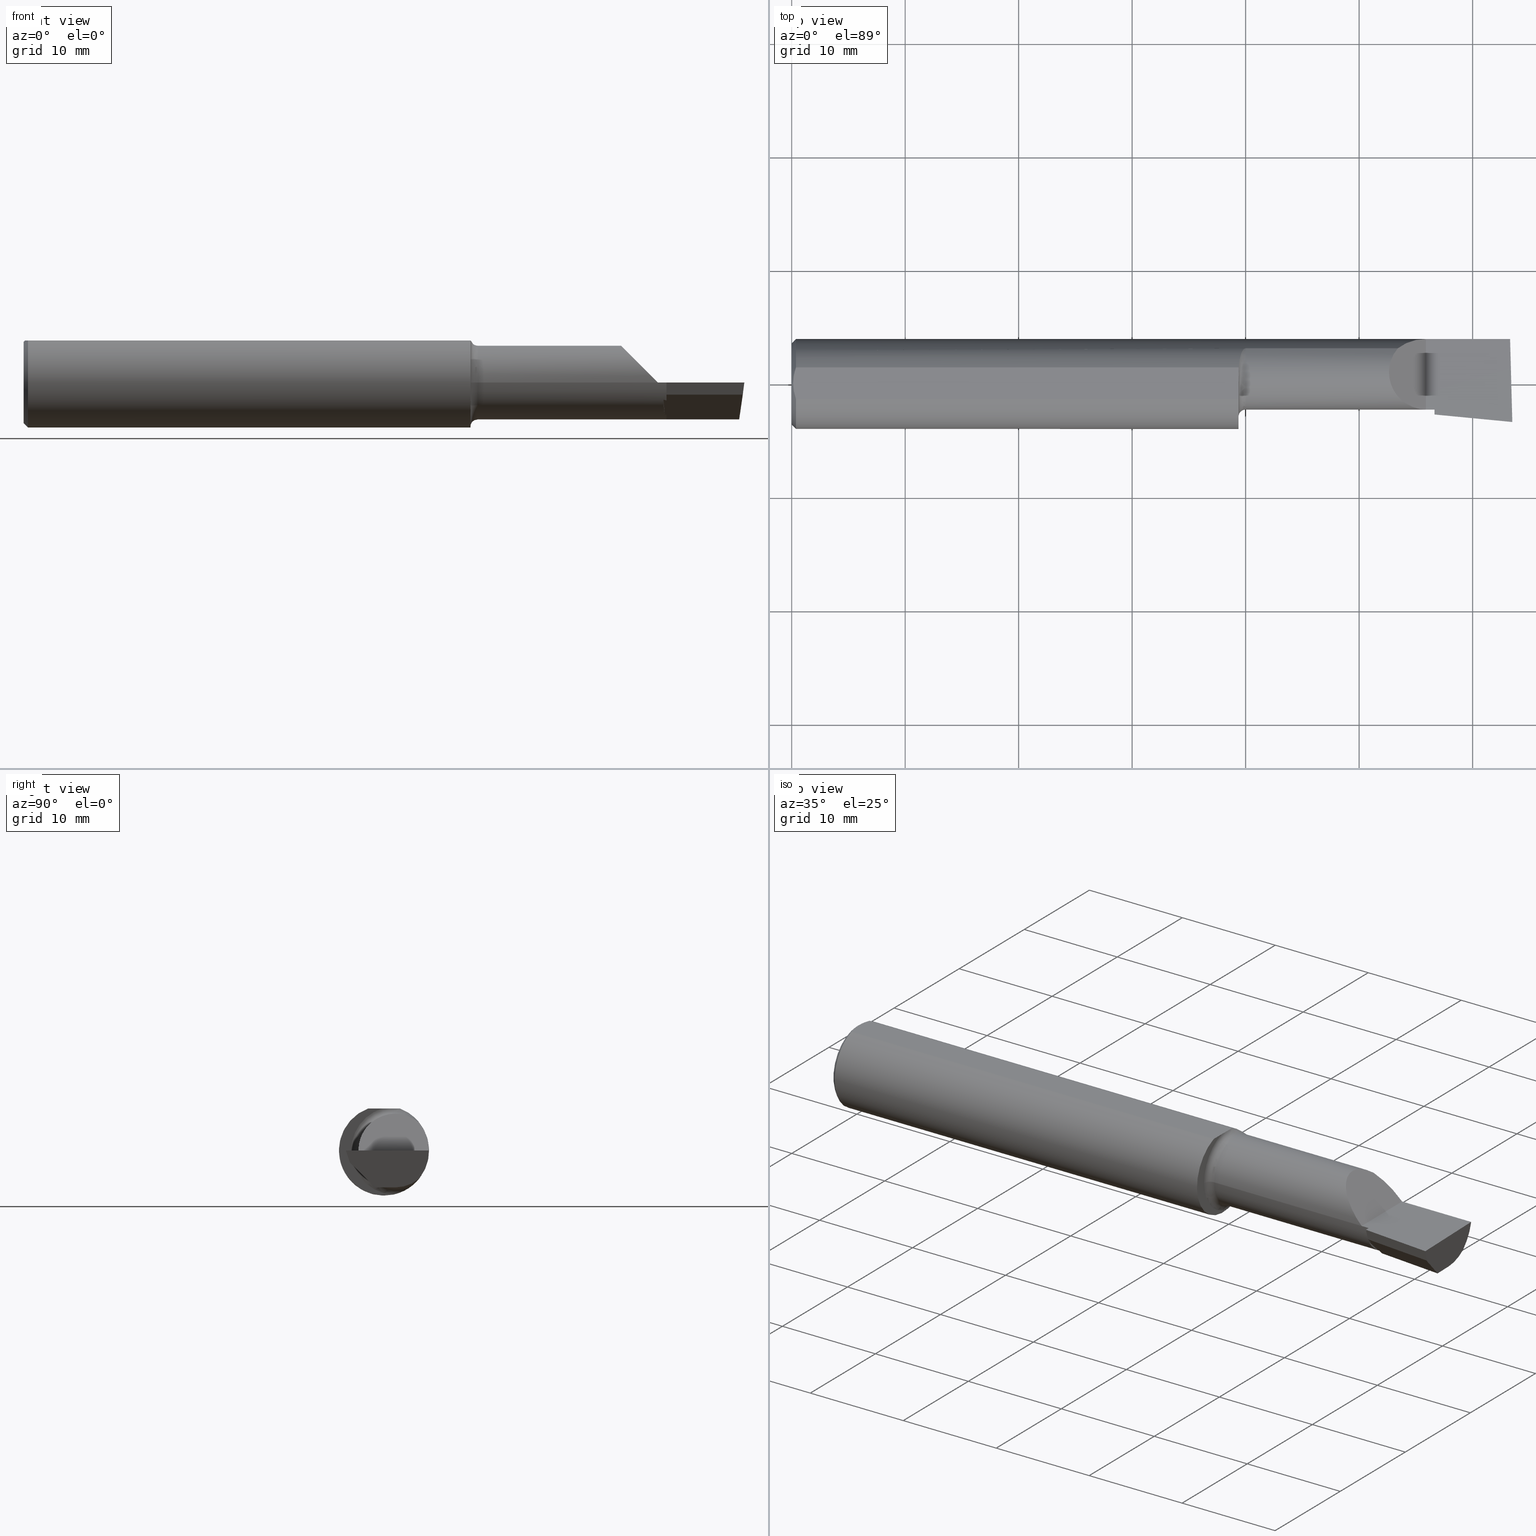
[diagram: canonical four-view strip — front | top / right | iso, engineering-drawing reading convention]
A machine part, canonical four-view strip (front | top / right | iso — engineering-drawing reading convention). The complete STEP part file that produces these views, byte-faithful:
ISO-10303-21;
HEADER;
FILE_DESCRIPTION (( 'STEP AP203' ),
    '1' );
FILE_NAME ('212061-LHB290900.STEP',
    '2024-08-27T17:01:31',
    ( '' ),
    ( '' ),
    'SwSTEP 2.0',
    'SolidWorks 2024',
    '' );
FILE_SCHEMA (( 'CONFIG_CONTROL_DESIGN' ));
ENDSEC;

DATA;
#1 = B_SPLINE_CURVE_WITH_KNOTS ( 'NONE', 3,
 ( #317, #483, #180, #320, #547, #287, #595, #674, #315, #540, #51, #491 ),
 .UNSPECIFIED., .F., .F.,
 ( 4, 2, 2, 2, 2, 4 ),
 ( 5.609278044431627235E-07, 0.001139286486424878012, 0.001708649265735095405, 0.001993330655390204102, 0.002135671350217758450, 0.002278012045045312798 ),
 .UNSPECIFIED. ) ;
#2 = CARTESIAN_POINT ( 'NONE',  ( 2.500000000000000000, -0.2500000000000000555, 6.829619984160658046E-17 ) ) ;
#3 = CARTESIAN_POINT ( 'NONE',  ( 1.574999999999999956, 0.03899999999999998607, 0.000000000000000000 ) ) ;
#4 = CARTESIAN_POINT ( 'NONE',  ( 1.561718925422505011, 0.1096997042182709381, -0.1111484413982585656 ) ) ;
#5 = EDGE_LOOP ( 'NONE', ( #418, #500 ) ) ;
#6 = APPROVAL_ROLE ( '' ) ;
#7 = ADVANCED_FACE ( 'NONE', ( #297 ), #521, .F. ) ;
#8 = B_SPLINE_CURVE_WITH_KNOTS ( 'NONE', 3,
 ( #557, #561, #76, #68, #405, #346 ),
 .UNSPECIFIED., .F., .F.,
 ( 4, 2, 4 ),
 ( 0.002884734412378666280, 0.003593604306281239329, 0.004302474200183812811 ),
 .UNSPECIFIED. ) ;
#9 = LINE ( 'NONE', #604, #90 ) ;
#10 = CARTESIAN_POINT ( 'NONE',  ( 2.229999999999999982, -0.1250987282888250673, -0.009079441937751890623 ) ) ;
#11 = VERTEX_POINT ( 'NONE', #381 ) ;
#12 = APPROVAL_DATE_TIME ( #169, #664 ) ;
#13 = EDGE_CURVE ( 'NONE', #555, #176, #375, .T. ) ;
#14 = DIRECTION ( 'NONE',  ( -1.000000000000000000, 6.829619984160658046E-18, -0.000000000000000000 ) ) ;
#15 = LINE ( 'NONE', #538, #667 ) ;
#16 = DIRECTION ( 'NONE',  ( -0.000000000000000000, 1.000000000000000000, -2.362393828558074595E-16 ) ) ;
#17 = EDGE_LOOP ( 'NONE', ( #558, #165, #493, #93, #129 ) ) ;
#18 = CIRCLE ( 'NONE', #415, 0.1560999999999999888 ) ;
#19 = FACE_OUTER_BOUND ( 'NONE', #91, .T. ) ;
#20 = DIRECTION ( 'NONE',  ( 0.02677973311239121093, -0.9996413586354002678, 2.361772610768839557E-16 ) ) ;
#21 = VERTEX_POINT ( 'NONE', #162 ) ;
#22 = DATE_AND_TIME ( #487, #174 ) ;
#23 = LINE ( 'NONE', #131, #385 ) ;
#24 = ADVANCED_FACE ( 'NONE', ( #445 ), #401, .F. ) ;
#25 = VERTEX_POINT ( 'NONE', #586 ) ;
#26 = LINE ( 'NONE', #514, #642 ) ;
#27 = ORIENTED_EDGE ( 'NONE', *, *, #520, .T. ) ;
#28 = DIRECTION ( 'NONE',  ( -2.062340599401664886E-18, -0.3019700370129921319, 0.9533174165755978757 ) ) ;
#29 = VECTOR ( 'NONE', #437, 39.37007874015748143 ) ;
#30 = APPROVAL_PERSON_ORGANIZATION ( #568, #344, #156 ) ;
#31 = DIRECTION ( 'NONE',  ( -1.000000000000000000, -0.000000000000000000, -0.000000000000000000 ) ) ;
#32 = ORIENTED_EDGE ( 'NONE', *, *, #158, .F. ) ;
#33 = EDGE_CURVE ( 'NONE', #233, #289, #423, .T. ) ;
#34 = ORIENTED_EDGE ( 'NONE', *, *, #212, .F. ) ;
#35 = DIRECTION ( 'NONE',  ( -1.000000000000000000, -0.000000000000000000, -0.000000000000000000 ) ) ;
#36 = VERTEX_POINT ( 'NONE', #601 ) ;
#37 = DIRECTION ( 'NONE',  ( -0.06717917588521488126, -0.6976824170844042605, 0.7132504491541850067 ) ) ;
#38 = ORIENTED_EDGE ( 'NONE', *, *, #464, .T. ) ;
#39 = DIRECTION ( 'NONE',  ( 1.000000000000000000, 0.000000000000000000, 0.000000000000000000 ) ) ;
#40 = VERTEX_POINT ( 'NONE', #656 ) ;
#41 = EDGE_CURVE ( 'NONE', #650, #40, #9, .T. ) ;
#42 = DIRECTION ( 'NONE',  ( 0.000000000000000000, -1.000000000000000000, 0.000000000000000000 ) ) ;
#43 = DIRECTION ( 'NONE',  ( -0.7071067811865442421, 0.000000000000000000, -0.7071067811865507924 ) ) ;
#44 = FACE_OUTER_BOUND ( 'NONE', #152, .T. ) ;
#45 = DIRECTION ( 'NONE',  ( 0.000000000000000000, -1.000000000000000000, 0.000000000000000000 ) ) ;
#46 = VECTOR ( 'NONE', #16, 39.37007874015748143 ) ;
#47 = DIRECTION ( 'NONE',  ( -6.829619984160658046E-18, -1.000000000000000000, 0.000000000000000000 ) ) ;
#48 = LINE ( 'NONE', #535, #135 ) ;
#49 = CARTESIAN_POINT ( 'NONE',  ( 2.511267271176985005, -0.1329849148174156448, 6.718165849964441477E-17 ) ) ;
#50 = DIRECTION ( 'NONE',  ( -1.000000000000000000, 6.829619984160658046E-18, -0.000000000000000000 ) ) ;
#51 = CARTESIAN_POINT ( 'NONE',  ( 1.573073469876037578, 0.1221769230783503885, 0.09715971113124462211 ) ) ;
#52 = DIRECTION ( 'NONE',  ( 1.000000000000000000, 0.000000000000000000, 0.000000000000000000 ) ) ;
#53 = ORIENTED_EDGE ( 'NONE', *, *, #95, .T. ) ;
#54 = PERSON_AND_ORGANIZATION ( #370, #81 ) ;
#55 = CARTESIAN_POINT ( 'NONE',  ( 0.01499999999999999944, -0.05497272050753897882, 0.1461000000000000076 ) ) ;
#56 = DIRECTION ( 'NONE',  ( -1.000000000000000000, 6.829619984160658046E-18, -0.000000000000000000 ) ) ;
#57 = ORIENTED_EDGE ( 'NONE', *, *, #254, .F. ) ;
#58 = AXIS2_PLACEMENT_3D ( 'NONE', #327, #551, #210 ) ;
#59 =( NAMED_UNIT ( * ) PLANE_ANGLE_UNIT ( ) SI_UNIT ( $, .RADIAN. ) );
#60 = LINE ( 'NONE', #10, #296 ) ;
#61 = ORIENTED_EDGE ( 'NONE', *, *, #127, .T. ) ;
#62 = DIRECTION ( 'NONE',  ( 0.000000000000000000, -0.000000000000000000, -1.000000000000000000 ) ) ;
#63 = CARTESIAN_POINT ( 'NONE',  ( 2.231521054637351842, 0.05336724426983588399, -0.1900000000000009737 ) ) ;
#64 = DIRECTION ( 'NONE',  ( 0.000000000000000000, -1.000000000000000000, 0.000000000000000000 ) ) ;
#65 = EDGE_LOOP ( 'NONE', ( #635, #144, #277 ) ) ;
#66 = VECTOR ( 'NONE', #453, 39.37007874015748143 ) ;
#67 = SECURITY_CLASSIFICATION ( '', '', #278 ) ;
#68 = CARTESIAN_POINT ( 'NONE',  ( 0.009371209226504017067, 0.03711161584255317364, 0.1460999999999999799 ) ) ;
#69 = ORIENTED_EDGE ( 'NONE', *, *, #236, .T. ) ;
#70 = DIRECTION ( 'NONE',  ( -1.000000000000000000, -0.000000000000000000, -0.000000000000000000 ) ) ;
#71 = ORIENTED_EDGE ( 'NONE', *, *, #41, .T. ) ;
#72 = FACE_OUTER_BOUND ( 'NONE', #462, .T. ) ;
#73 = PRODUCT_DEFINITION ( 'UNKNOWN', '', #229, #393 ) ;
#74 = PERSON_AND_ORGANIZATION ( #370, #81 ) ;
#75 = EDGE_CURVE ( 'NONE', #477, #82, #495, .T. ) ;
#76 = CARTESIAN_POINT ( 'NONE',  ( 0.005929349363809115203, 0.01879672308419498561, 0.1461000000000000076 ) ) ;
#77 = ORIENTED_EDGE ( 'NONE', *, *, #151, .T. ) ;
#78 = CARTESIAN_POINT ( 'NONE',  ( 2.494657007549286654, -0.1180817311663150265, -0.04199999999999994016 ) ) ;
#79 = APPROVAL_STATUS ( 'not_yet_approved' ) ;
#80 = AXIS2_PLACEMENT_3D ( 'NONE', #636, #411, #138 ) ;
#81 = ORGANIZATION ( 'UNSPECIFIED', 'UNSPECIFIED', '' ) ;
#82 = VERTEX_POINT ( 'NONE', #110 ) ;
#83 = LINE ( 'NONE', #684, #173 ) ;
#84 = EDGE_CURVE ( 'NONE', #184, #176, #620, .T. ) ;
#85 = ORIENTED_EDGE ( 'NONE', *, *, #565, .F. ) ;
#86 = DIRECTION ( 'NONE',  ( 1.000000000000000000, -6.829619984160658046E-18, 0.000000000000000000 ) ) ;
#87 = ORIENTED_EDGE ( 'NONE', *, *, #299, .T. ) ;
#88 = DIRECTION ( 'NONE',  ( 0.000000000000000000, 0.000000000000000000, 1.000000000000000000 ) ) ;
#89 = VECTOR ( 'NONE', #119, 39.37007874015748143 ) ;
#90 = VECTOR ( 'NONE', #107, 39.37007874015748143 ) ;
#91 = EDGE_LOOP ( 'NONE', ( #330, #683, #228, #576 ) ) ;
#92 = DIRECTION ( 'NONE',  ( 0.000000000000000000, -1.000000000000000000, 0.000000000000000000 ) ) ;
#93 = ORIENTED_EDGE ( 'NONE', *, *, #33, .T. ) ;
#94 = DIRECTION ( 'NONE',  ( 6.829619984160658046E-18, 1.000000000000000000, 0.000000000000000000 ) ) ;
#95 = EDGE_CURVE ( 'NONE', #36, #373, #352, .T. ) ;
#96 = DIRECTION ( 'NONE',  ( 0.000000000000000000, 0.000000000000000000, 1.000000000000000000 ) ) ;
#97 = CARTESIAN_POINT ( 'NONE',  ( 2.219243579197730298, -0.07413921331227926736, -0.05964837307989698939 ) ) ;
#98 = VECTOR ( 'NONE', #396, 39.37007874015748854 ) ;
#99 = PLANE ( 'NONE',  #532 ) ;
#100 = VECTOR ( 'NONE', #452, 39.37007874015748143 ) ;
#101 = VERTEX_POINT ( 'NONE', #486 ) ;
#102 = DIRECTION ( 'NONE',  ( 1.000000000000000000, -6.829619984160658046E-18, 0.000000000000000000 ) ) ;
#103 = CARTESIAN_POINT ( 'NONE',  ( 1.569807963827557939, 0.1204260765459410076, -0.09932603807424206233 ) ) ;
#104 = EDGE_CURVE ( 'NONE', #82, #402, #48, .T. ) ;
#105 = ORIENTED_EDGE ( 'NONE', *, *, #391, .T. ) ;
#106 = DIRECTION ( 'NONE',  ( -1.000000000000000000, 6.829619984160658046E-18, -0.000000000000000000 ) ) ;
#107 = DIRECTION ( 'NONE',  ( 1.000000000000000000, -6.829619984160658046E-18, 0.000000000000000000 ) ) ;
#108 = CARTESIAN_POINT ( 'NONE',  ( 1.573773678789314845, 0.1221769230769225723, -0.09715971113303979723 ) ) ;
#109 = CARTESIAN_POINT ( 'NONE',  ( 0.01499999999999999424, 0.000000000000000000, 0.000000000000000000 ) ) ;
#110 = CARTESIAN_POINT ( 'NONE',  ( 1.550000000000000044, -0.05497272050753900657, 0.1461000000000000076 ) ) ;
#111 = EDGE_CURVE ( 'NONE', #40, #123, #235, .T. ) ;
#112 = CARTESIAN_POINT ( 'NONE',  ( 0.01499999999999999424, 0.000000000000000000, 0.000000000000000000 ) ) ;
#113 = DATE_AND_TIME ( #552, #643 ) ;
#114 = CIRCLE ( 'NONE', #400, 0.1529000000000000636 ) ;
#115 = CARTESIAN_POINT ( 'NONE',  ( 1.552778396491915069, 0.07658129683222567041, -0.1363479870192731702 ) ) ;
#116 = CARTESIAN_POINT ( 'NONE',  ( 2.229999999999999982, -0.1059019569866646721, 9.497440290473414864E-17 ) ) ;
#117 = DIRECTION ( 'NONE',  ( -1.000000000000000000, 6.829619984160658046E-18, -0.000000000000000000 ) ) ;
#118 = ORIENTED_EDGE ( 'NONE', *, *, #469, .F. ) ;
#119 = DIRECTION ( 'NONE',  ( 0.7071067811865390240, 0.000000000000000000, -0.7071067811865560104 ) ) ;
#120 = ORIENTED_EDGE ( 'NONE', *, *, #353, .T. ) ;
#121 = AXIS2_PLACEMENT_3D ( 'NONE', #649, #70, #88 ) ;
#122 = CARTESIAN_POINT ( 'NONE',  ( 0.000000000000000000, 0.000000000000000000, 0.000000000000000000 ) ) ;
#123 = VERTEX_POINT ( 'NONE', #363 ) ;
#124 = EDGE_CURVE ( 'NONE', #443, #650, #1, .T. ) ;
#125 = CARTESIAN_POINT ( 'NONE',  ( 2.217581325552284710, -0.09140237746813974218, -0.04199999999999994016 ) ) ;
#126 = DIRECTION ( 'NONE',  ( 0.000000000000000000, 0.000000000000000000, 1.000000000000000000 ) ) ;
#127 = EDGE_CURVE ( 'NONE', #11, #123, #217, .T. ) ;
#128 = CARTESIAN_POINT ( 'NONE',  ( 0.000000000000000000, 0.05497272050753903433, 0.1460999999999999521 ) ) ;
#129 = ORIENTED_EDGE ( 'NONE', *, *, #407, .F. ) ;
#130 = DIRECTION ( 'NONE',  ( -6.829619984160658816E-18, -1.000000000000000000, 6.755756298638184848E-34 ) ) ;
#131 = CARTESIAN_POINT ( 'NONE',  ( -8.735083959741170053E-19, -0.08890000000000000679, 3.155924005931204823E-16 ) ) ;
#132 = ORIENTED_EDGE ( 'NONE', *, *, #391, .F. ) ;
#133 = CARTESIAN_POINT ( 'NONE',  ( 2.500000000000000000, 0.03899999999999996525, -0.1279000000000000137 ) ) ;
#134 = VECTOR ( 'NONE', #492, 39.37007874015748143 ) ;
#135 = VECTOR ( 'NONE', #599, 39.37007874015748143 ) ;
#136 = AXIS2_PLACEMENT_3D ( 'NONE', #700, #39, #208 ) ;
#137 = EDGE_LOOP ( 'NONE', ( #347, #246, #61 ) ) ;
#138 = DIRECTION ( 'NONE',  ( 0.000000000000000000, 1.000000000000000000, -1.656870447394628111E-16 ) ) ;
#139 = CALENDAR_DATE ( 2024, 27, 8 ) ;
#140 =( BOUNDED_CURVE ( )  B_SPLINE_CURVE ( 3, ( #668, #614, #179, #240 ),
 .UNSPECIFIED., .F., .F. ) 
 B_SPLINE_CURVE_WITH_KNOTS ( ( 4, 4 ),
 ( 5.219635427496930546, 5.798005679412931102 ),
 .UNSPECIFIED. ) 
 CURVE ( )  GEOMETRIC_REPRESENTATION_ITEM ( )  RATIONAL_B_SPLINE_CURVE ( ( 1.000000000000000000, 0.9723177149240063155, 0.9723177149240063155, 1.000000000000000000 ) ) 
 REPRESENTATION_ITEM ( '' )  );
#141 = ORIENTED_EDGE ( 'NONE', *, *, #325, .T. ) ;
#142 = LINE ( 'NONE', #511, #533 ) ;
#143 = ADVANCED_FACE ( 'NONE', ( #403 ), #408, .F. ) ;
#144 = ORIENTED_EDGE ( 'NONE', *, *, #291, .T. ) ;
#145 = DIRECTION ( 'NONE',  ( 0.000000000000000000, -0.7025528302622681132, 0.7116315905652844664 ) ) ;
#146 = VECTOR ( 'NONE', #175, 39.37007874015748854 ) ;
#147 = AXIS2_PLACEMENT_3D ( 'NONE', #109, #675, #332 ) ;
#148 = VERTEX_POINT ( 'NONE', #195 ) ;
#149 = EDGE_CURVE ( 'NONE', #510, #689, #83, .T. ) ;
#150 = CARTESIAN_POINT ( 'NONE',  ( 1.550000000000000044, 0.03899999999999998607, 0.000000000000000000 ) ) ;
#151 = EDGE_CURVE ( 'NONE', #624, #689, #298, .T. ) ;
#152 = EDGE_LOOP ( 'NONE', ( #406, #361, #308, #466 ) ) ;
#153 = CARTESIAN_POINT ( 'NONE',  ( 2.020546539569985978, 0.02604885517094871969, 0.1794534604300119796 ) ) ;
#154 = CARTESIAN_POINT ( 'NONE',  ( 2.229999999999999982, -0.02439791101555218930, -0.1110815685830197769 ) ) ;
#155 = ORIENTED_EDGE ( 'NONE', *, *, #429, .T. ) ;
#156 = APPROVAL_ROLE ( '' ) ;
#157 = CARTESIAN_POINT ( 'NONE',  ( 2.217581325552284710, -0.09140237746813974218, -0.04199999999999994016 ) ) ;
#158 = EDGE_CURVE ( 'NONE', #365, #36, #142, .T. ) ;
#159 = AXIS2_PLACEMENT_3D ( 'NONE', #575, #86, #160 ) ;
#160 = DIRECTION ( 'NONE',  ( 6.829619984160658046E-18, 1.000000000000000000, 0.000000000000000000 ) ) ;
#161 = CARTESIAN_POINT ( 'NONE',  ( 2.480278310775617889, 0.03899999999999996525, -0.1279000000000000137 ) ) ;
#162 = CARTESIAN_POINT ( 'NONE',  ( 2.229999999999999982, 0.03899999999999996525, -0.1278999999999999859 ) ) ;
#163 = CARTESIAN_POINT ( 'NONE',  ( 1.570642477297819584, 0.1209866175416251244, -0.09864046781463563229 ) ) ;
#164 = UNCERTAINTY_MEASURE_WITH_UNIT (LENGTH_MEASURE( 1.000000000000000082E-05 ), #607, 'distance_accuracy_value', 'NONE');
#165 = ORIENTED_EDGE ( 'NONE', *, *, #13, .T. ) ;
#166 = CARTESIAN_POINT ( 'NONE',  ( 2.229999999999999982, -0.007794043580176876658, -0.1278999999999999859 ) ) ;
#167 = ADVANCED_FACE ( 'NONE', ( #72 ), #414, .F. ) ;
#168 = CARTESIAN_POINT ( 'NONE',  ( 3.121792066109142165E-32, 0.1560999999999999333, 3.155924005931204823E-16 ) ) ;
#169 = DATE_AND_TIME ( #384, #536 ) ;
#170 =( NAMED_UNIT ( * ) SI_UNIT ( $, .STERADIAN. ) SOLID_ANGLE_UNIT ( ) );
#171 = DIRECTION ( 'NONE',  ( -1.000000000000000000, 6.829619984160658046E-18, -0.000000000000000000 ) ) ;
#172 = CYLINDRICAL_SURFACE ( 'NONE', #58, 0.1279000000000000137 ) ;
#173 = VECTOR ( 'NONE', #28, 39.37007874015748143 ) ;
#174 = LOCAL_TIME ( 10, 1, 31.00000000000000000, #366 ) ;
#175 = DIRECTION ( 'NONE',  ( 0.1199690778467074614, -0.3102690083707258517, 0.9430485474275739355 ) ) ;
#176 = VERTEX_POINT ( 'NONE', #293 ) ;
#177 = APPROVAL_STATUS ( 'not_yet_approved' ) ;
#178 = CARTESIAN_POINT ( 'NONE',  ( 1.902500000000000080, 0.1221769230769229331, -0.09715971113303932538 ) ) ;
#179 = CARTESIAN_POINT ( 'NONE',  ( 2.220366584553309597, -0.06247635677146574223, -0.08177012336190631059 ) ) ;
#180 = CARTESIAN_POINT ( 'NONE',  ( 1.553337430773764405, 0.08212431379002413379, 0.1335735365034965427 ) ) ;
#181 = DIRECTION ( 'NONE',  ( -1.000000000000000000, 6.829619984160658046E-18, 0.000000000000000000 ) ) ;
#182 = EDGE_CURVE ( 'NONE', #402, #443, #579, .T. ) ;
#183 = CARTESIAN_POINT ( 'NONE',  ( 2.224155181711048090, -0.02313027091166849208, -0.1117955251181489973 ) ) ;
#184 = VERTEX_POINT ( 'NONE', #678 ) ;
#185 = DIRECTION ( 'NONE',  ( -0.000000000000000000, 1.000000000000000000, -0.000000000000000000 ) ) ;
#186 = VECTOR ( 'NONE', #130, 39.37007874015748143 ) ;
#187 = DATE_AND_TIME ( #470, #622 ) ;
#188 = AXIS2_PLACEMENT_3D ( 'NONE', #266, #537, #496 ) ;
#189 = ORIENTED_EDGE ( 'NONE', *, *, #149, .T. ) ;
#190 = CARTESIAN_POINT ( 'NONE',  ( 2.229999999999999982, -0.2500000000000000555, 9.500418952277011559E-17 ) ) ;
#191 = PERSON_AND_ORGANIZATION ( #370, #81 ) ;
#192 =( BOUNDED_CURVE ( )  B_SPLINE_CURVE ( 3, ( #392, #193, #232, #288 ),
 .UNSPECIFIED., .F., .T. ) 
 B_SPLINE_CURVE_WITH_KNOTS ( ( 4, 4 ),
 ( 4.934903206476692006, 5.606733633295030828 ),
 .UNSPECIFIED. ) 
 CURVE ( )  GEOMETRIC_REPRESENTATION_ITEM ( )  RATIONAL_B_SPLINE_CURVE ( ( 1.000000000000000000, 0.9627393467969929119, 0.9627393467969929119, 1.000000000000000000 ) ) 
 REPRESENTATION_ITEM ( '' )  );
#193 = CARTESIAN_POINT ( 'NONE',  ( 2.488065891762460069, 0.1561000000000000443, -0.03563149886036989789 ) ) ;
#194 = ORIENTED_EDGE ( 'NONE', *, *, #429, .F. ) ;
#195 = CARTESIAN_POINT ( 'NONE',  ( 2.500000000000000000, -0.1319000000000001560, 8.537024980200822558E-17 ) ) ;
#196 = APPROVAL_DATE_TIME ( #187, #660 ) ;
#197 = AXIS2_PLACEMENT_3D ( 'NONE', #63, #544, #549 ) ;
#198 = AXIS2_PLACEMENT_3D ( 'NONE', #395, #62, #546 ) ;
#199 = ORIENTED_EDGE ( 'NONE', *, *, #182, .F. ) ;
#200 = APPLICATION_PROTOCOL_DEFINITION ( 'international standard', 'config_control_design', 1994, #360 ) ;
#201 = ORIENTED_EDGE ( 'NONE', *, *, #606, .T. ) ;
#202 = CARTESIAN_POINT ( 'NONE',  ( 2.200000000000000178, -0.08890000000000010394, 9.797174393178826150E-17 ) ) ;
#203 = CC_DESIGN_PERSON_AND_ORGANIZATION_ASSIGNMENT ( #191, #250, ( #488 ) ) ;
#204 = ADVANCED_FACE ( 'NONE', ( #247 ), #630, .F. ) ;
#205 = VERTEX_POINT ( 'NONE', #567 ) ;
#206 = FACE_OUTER_BOUND ( 'NONE', #578, .T. ) ;
#207 = VERTEX_POINT ( 'NONE', #78 ) ;
#208 = DIRECTION ( 'NONE',  ( 0.000000000000000000, 0.000000000000000000, -1.000000000000000000 ) ) ;
#209 = DIRECTION ( 'NONE',  ( -6.829619984160658046E-18, -1.000000000000000000, 0.000000000000000000 ) ) ;
#210 = DIRECTION ( 'NONE',  ( -6.829619984160658816E-18, -1.000000000000000000, 0.000000000000000000 ) ) ;
#211 = ORIENTED_EDGE ( 'NONE', *, *, #416, .F. ) ;
#212 = EDGE_CURVE ( 'NONE', #632, #21, #633, .T. ) ;
#213 = FACE_OUTER_BOUND ( 'NONE', #65, .T. ) ;
#214 = CARTESIAN_POINT ( 'NONE',  ( 0.005000000000000139749, -0.009384304010803560733, 0.1460999999999999799 ) ) ;
#215 = CARTESIAN_POINT ( 'NONE',  ( 0.01499999999999999424, 0.05497272050753903433, 0.1460999999999999521 ) ) ;
#216 = CARTESIAN_POINT ( 'NONE',  ( 2.481689713451043833, 0.1221769230769229331, -0.09715971113303932538 ) ) ;
#217 = LINE ( 'NONE', #654, #699 ) ;
#218 = VECTOR ( 'NONE', #314, 39.37007874015748143 ) ;
#219 = CARTESIAN_POINT ( 'NONE',  ( 0.01499999999999999424, 1.911673653469018068E-17, 0.1560999999999999888 ) ) ;
#220 = CARTESIAN_POINT ( 'NONE',  ( 1.555770389155364919, 0.09238103948165142520, -0.1261792856732153745 ) ) ;
#221 = ADVANCED_FACE ( 'NONE', ( #249 ), #351, .F. ) ;
#222 = CARTESIAN_POINT ( 'NONE',  ( 2.130728481662469420, 0.1443546689866655186, 0.06927151833752984156 ) ) ;
#223 = FACE_OUTER_BOUND ( 'NONE', #354, .T. ) ;
#224 = CARTESIAN_POINT ( 'NONE',  ( 2.229999999999999982, -0.1250987282888250673, -0.009079441937751890623 ) ) ;
#225 = CC_DESIGN_PERSON_AND_ORGANIZATION_ASSIGNMENT ( #54, #272, ( #229 ) ) ;
#226 = LINE ( 'NONE', #49, #369 ) ;
#227 = CIRCLE ( 'NONE', #121, 0.1410999999999996146 ) ;
#228 = ORIENTED_EDGE ( 'NONE', *, *, #104, .F. ) ;
#229 = PRODUCT_DEFINITION_FORMATION_WITH_SPECIFIED_SOURCE ( 'ANY', '', #488, .NOT_KNOWN. ) ;
#230 = CC_DESIGN_SECURITY_CLASSIFICATION ( #67, ( #229 ) ) ;
#231 = DIRECTION ( 'NONE',  ( -6.829619984160658046E-18, -1.000000000000000000, 0.000000000000000000 ) ) ;
#232 = CARTESIAN_POINT ( 'NONE',  ( 2.484397555013683423, 0.1443546689866653243, -0.06927151833753060484 ) ) ;
#233 = VERTEX_POINT ( 'NONE', #215 ) ;
#234 = CARTESIAN_POINT ( 'NONE',  ( 2.229999999999999982, -0.07288638121117571589, -0.06196650465749598685 ) ) ;
#235 =( BOUNDED_CURVE ( )  B_SPLINE_CURVE ( 3, ( #368, #222, #441, #435 ),
 .UNSPECIFIED., .F., .F. ) 
 B_SPLINE_CURVE_WITH_KNOTS ( ( 4, 4 ),
 ( 0.8989658999765673952, 1.570796326794896336 ),
 .UNSPECIFIED. ) 
 CURVE ( )  GEOMETRIC_REPRESENTATION_ITEM ( )  RATIONAL_B_SPLINE_CURVE ( ( 1.000000000000000000, 0.9627393467969940222, 0.9627393467969940222, 1.000000000000000000 ) ) 
 REPRESENTATION_ITEM ( '' )  );
#236 = EDGE_CURVE ( 'NONE', #510, #207, #15, .T. ) ;
#237 = PLANE ( 'NONE',  #473 ) ;
#238 = ORIENTED_EDGE ( 'NONE', *, *, #212, .T. ) ;
#239 = CARTESIAN_POINT ( 'NONE',  ( 1.550000000000000044, -0.006091019061449783230, 0.1460999999999999799 ) ) ;
#240 = CARTESIAN_POINT ( 'NONE',  ( 2.219243579197730298, -0.07413921331227926736, -0.05964837307989698939 ) ) ;
#241 = ORIENTED_EDGE ( 'NONE', *, *, #416, .T. ) ;
#242 = CARTESIAN_POINT ( 'NONE',  ( 1.550497536416570954, 0.01428560316177553656, 0.1461000000000000076 ) ) ;
#243 = ADVANCED_FACE ( 'NONE', ( #223 ), #681, .T. ) ;
#244 = CIRCLE ( 'NONE', #321, 0.1278999999999999859 ) ;
#245 = CARTESIAN_POINT ( 'NONE',  ( 1.574999999999999956, 0.1221769230769225167, -0.09715971113303972784 ) ) ;
#246 = ORIENTED_EDGE ( 'NONE', *, *, #646, .T. ) ;
#247 = FACE_OUTER_BOUND ( 'NONE', #421, .T. ) ;
#248 = ORIENTED_EDGE ( 'NONE', *, *, #419, .F. ) ;
#249 = FACE_OUTER_BOUND ( 'NONE', #629, .T. ) ;
#250 = PERSON_AND_ORGANIZATION_ROLE ( 'design_owner' ) ;
#251 = ORIENTED_EDGE ( 'NONE', *, *, #149, .F. ) ;
#252 = CIRCLE ( 'NONE', #504, 0.1278999999999999859 ) ;
#253 = ORIENTED_EDGE ( 'NONE', *, *, #565, .T. ) ;
#254 = EDGE_CURVE ( 'NONE', #689, #148, #226, .T. ) ;
#255 =( BOUNDED_CURVE ( )  B_SPLINE_CURVE ( 3, ( #428, #153, #695, #202 ),
 .UNSPECIFIED., .F., .T. ) 
 B_SPLINE_CURVE_WITH_KNOTS ( ( 4, 4 ),
 ( 5.575169463880055076, 7.853981633974482790 ),
 .UNSPECIFIED. ) 
 CURVE ( )  GEOMETRIC_REPRESENTATION_ITEM ( )  RATIONAL_B_SPLINE_CURVE ( ( 1.000000000000000000, 0.6120893875309916243, 0.6120893875309916243, 1.000000000000000000 ) ) 
 REPRESENTATION_ITEM ( '' )  );
#256 = ORIENTED_EDGE ( 'NONE', *, *, #124, .T. ) ;
#257 = CC_DESIGN_DATE_AND_TIME_ASSIGNMENT ( #113, #503, ( #67 ) ) ;
#258 = CARTESIAN_POINT ( 'NONE',  ( 2.229999999999999982, 0.03899999999999997913, 0.000000000000000000 ) ) ;
#259 = DIRECTION ( 'NONE',  ( -0.7071067811865507924, 0.000000000000000000, 0.7071067811865442421 ) ) ;
#260 = FACE_OUTER_BOUND ( 'NONE', #5, .T. ) ;
#261 = CARTESIAN_POINT ( 'NONE',  ( 0.009356849677356088302, -0.03706298561014170767, 0.1461000000000000354 ) ) ;
#262 = AXIS2_PLACEMENT_3D ( 'NONE', #157, #528, #145 ) ;
#263 = VECTOR ( 'NONE', #14, 39.37007874015748143 ) ;
#264 = ADVANCED_FACE ( 'NONE', ( #432 ), #273, .T. ) ;
#265 = CARTESIAN_POINT ( 'NONE',  ( 1.574999999999999956, -0.08890000000000007618, 0.000000000000000000 ) ) ;
#266 = CARTESIAN_POINT ( 'NONE',  ( 0.01499999999999999424, 0.000000000000000000, 0.000000000000000000 ) ) ;
#267 = LINE ( 'NONE', #168, #134 ) ;
#268 = CYLINDRICAL_SURFACE ( 'NONE', #312, 0.1560999999999999888 ) ;
#269 = CARTESIAN_POINT ( 'NONE',  ( 2.222955765532497630, -0.07372957003912065932, -0.06042537193620692998 ) ) ;
#270 = CARTESIAN_POINT ( 'NONE',  ( 2.482182401943660466, -0.03207644703550106141, -0.1278999999999999859 ) ) ;
#271 = VERTEX_POINT ( 'NONE', #270 ) ;
#272 = PERSON_AND_ORGANIZATION_ROLE ( 'creator' ) ;
#273 = CYLINDRICAL_SURFACE ( 'NONE', #556, 0.1279000000000000137 ) ;
#274 = PERSON_AND_ORGANIZATION_ROLE ( 'classification_officer' ) ;
#275 = EDGE_CURVE ( 'NONE', #123, #25, #267, .T. ) ;
#276 = DIRECTION ( 'NONE',  ( -4.798168849487816926E-18, -0.7025528302622681132, 0.7116315905652844664 ) ) ;
#277 = ORIENTED_EDGE ( 'NONE', *, *, #529, .F. ) ;
#278 = SECURITY_CLASSIFICATION_LEVEL ( 'unclassified' ) ;
#279 = ADVANCED_FACE ( 'NONE', ( #318 ), #372, .F. ) ;
#280 = CARTESIAN_POINT ( 'NONE',  ( 1.567557852537987184, 0.1186103045499234954, -0.1015006042428818478 ) ) ;
#281 = ORIENTED_EDGE ( 'NONE', *, *, #553, .F. ) ;
#282 = FACE_OUTER_BOUND ( 'NONE', #637, .T. ) ;
#283 = ORIENTED_EDGE ( 'NONE', *, *, #627, .T. ) ;
#284 = ADVANCED_FACE ( 'NONE', ( #661 ), #99, .F. ) ;
#285 = COORDINATED_UNIVERSAL_TIME_OFFSET ( 8, 0, .BEHIND. ) ;
#286 = LOCAL_TIME ( 10, 1, 31.00000000000000000, #340 ) ;
#287 = CARTESIAN_POINT ( 'NONE',  ( 1.563476732597053109, 0.1130158469709905134, 0.1077376761497233632 ) ) ;
#288 = CARTESIAN_POINT ( 'NONE',  ( 2.481689713451043833, 0.1221769230769229331, -0.09715971113303932538 ) ) ;
#289 = VERTEX_POINT ( 'NONE', #382 ) ;
#290 = LINE ( 'NONE', #448, #89 ) ;
#291 = EDGE_CURVE ( 'NONE', #687, #397, #60, .T. ) ;
#292 = EDGE_LOOP ( 'NONE', ( #388, #474, #281, #350, #201, #238, #669, #141, #105, #53, #439 ) ) ;
#293 = CARTESIAN_POINT ( 'NONE',  ( 0.005000000000000177913, 2.057148876208899831E-17, 0.1460999999999999799 ) ) ;
#294 = CARTESIAN_POINT ( 'NONE',  ( 2.229999999999999982, 0.03899999999999997913, 0.000000000000000000 ) ) ;
#295 = ORIENTED_EDGE ( 'NONE', *, *, #236, .F. ) ;
#296 = VECTOR ( 'NONE', #276, 39.37007874015748143 ) ;
#297 = FACE_OUTER_BOUND ( 'NONE', #137, .T. ) ;
#298 = LINE ( 'NONE', #190, #186 ) ;
#299 = EDGE_CURVE ( 'NONE', #410, #477, #573, .T. ) ;
#300 = EDGE_LOOP ( 'NONE', ( #673, #253, #677, #355, #38, #77 ) ) ;
#301 = PERSON_AND_ORGANIZATION ( #370, #81 ) ;
#302 = ORIENTED_EDGE ( 'NONE', *, *, #275, .T. ) ;
#303 = AXIS2_PLACEMENT_3D ( 'NONE', #430, #106, #434 ) ;
#304 = CLOSED_SHELL ( 'NONE', ( #309, #24, #662, #543, #638, #243, #611, #167, #284, #7, #616, #665, #221, #264, #143, #204, #279, #589, #513 ) ) ;
#305 = CARTESIAN_POINT ( 'NONE',  ( 2.229999999999999982, 0.03899999999999996525, -0.1279000000000000137 ) ) ;
#306 = ORIENTED_EDGE ( 'NONE', *, *, #95, .F. ) ;
#307 = CARTESIAN_POINT ( 'NONE',  ( 2.503161552210378282, -0.2499153041001321018, 6.798346390156494500E-17 ) ) ;
#308 = ORIENTED_EDGE ( 'NONE', *, *, #299, .F. ) ;
#309 = ADVANCED_FACE ( 'NONE', ( #501 ), #172, .T. ) ;
#310 = DIRECTION ( 'NONE',  ( -1.000000000000000000, 6.829619984160658046E-18, -0.000000000000000000 ) ) ;
#311 = DIRECTION ( 'NONE',  ( 0.000000000000000000, -1.000000000000000000, 0.000000000000000000 ) ) ;
#312 = AXIS2_PLACEMENT_3D ( 'NONE', #424, #644, #482 ) ;
#313 = DIRECTION ( 'NONE',  ( 0.9953961983671787417, -0.09584575252022421721, -0.000000000000000000 ) ) ;
#314 = DIRECTION ( 'NONE',  ( -1.000000000000000000, -0.000000000000000000, -0.000000000000000000 ) ) ;
#315 = CARTESIAN_POINT ( 'NONE',  ( 1.568763041475362385, 0.1196999967355485001, 0.1002047663032609726 ) ) ;
#316 = CARTESIAN_POINT ( 'NONE',  ( 1.566392177358948201, 0.1172252637552312765, -0.1031022108064125337 ) ) ;
#317 = CARTESIAN_POINT ( 'NONE',  ( 1.550713348720345941, 0.05497272050753925637, 0.1460999999999999521 ) ) ;
#318 = FACE_OUTER_BOUND ( 'NONE', #338, .T. ) ;
#319 = DIRECTION ( 'NONE',  ( -1.000000000000000000, 6.829619984160658046E-18, -0.000000000000000000 ) ) ;
#320 = CARTESIAN_POINT ( 'NONE',  ( 1.557875668882801934, 0.09985555054163962330, 0.1202116869044328185 ) ) ;
#321 = AXIS2_PLACEMENT_3D ( 'NONE', #258, #50, #311 ) ;
#322 = DIRECTION ( 'NONE',  ( 0.9953961983671787417, -0.09584575252022418945, -9.831095531899268478E-17 ) ) ;
#323 = AXIS2_PLACEMENT_3D ( 'NONE', #530, #43, #259 ) ;
#324 = AXIS2_PLACEMENT_3D ( 'NONE', #619, #181, #231 ) ;
#325 = EDGE_CURVE ( 'NONE', #397, #365, #433, .T. ) ;
#326 = CARTESIAN_POINT ( 'NONE',  ( -8.735083959741483980E-19, -0.08890000000000002067, 0.000000000000000000 ) ) ;
#327 = CARTESIAN_POINT ( 'NONE',  ( 0.000000000000000000, 0.03899999999999999994, 0.000000000000000000 ) ) ;
#328 = PERSON_AND_ORGANIZATION ( #370, #81 ) ;
#329 = DIRECTION ( 'NONE',  ( 0.000000000000000000, 0.000000000000000000, 1.000000000000000000 ) ) ;
#330 = ORIENTED_EDGE ( 'NONE', *, *, #600, .T. ) ;
#331 = PRODUCT_RELATED_PRODUCT_CATEGORY ( 'detail', '', ( #488 ) ) ;
#332 = DIRECTION ( 'NONE',  ( 0.000000000000000000, 0.000000000000000000, -1.000000000000000000 ) ) ;
#333 = CARTESIAN_POINT ( 'NONE',  ( 2.480292454266014079, 0.03847204783946026746, -0.1279000000000000137 ) ) ;
#334 = AXIS2_PLACEMENT_3D ( 'NONE', #3, #478, #362 ) ;
#335 = ORIENTED_EDGE ( 'NONE', *, *, #13, .F. ) ;
#336 = EDGE_CURVE ( 'NONE', #205, #555, #227, .T. ) ;
#337 = DIRECTION ( 'NONE',  ( -1.000000000000000000, 6.829619984160658046E-18, -0.000000000000000000 ) ) ;
#338 = EDGE_LOOP ( 'NONE', ( #696, #132 ) ) ;
#339 = CARTESIAN_POINT ( 'NONE',  ( 2.500000000000000000, 0.03899999999999996525, -0.1279000000000000137 ) ) ;
#340 = COORDINATED_UNIVERSAL_TIME_OFFSET ( 8, 0, .BEHIND. ) ;
#341 = LINE ( 'NONE', #617, #146 ) ;
#342 = ORIENTED_EDGE ( 'NONE', *, *, #124, .F. ) ;
#343 = DIRECTION ( 'NONE',  ( 0.000000000000000000, -0.3019700370129921319, 0.9533174165755978757 ) ) ;
#344 = APPROVAL ( #79, 'UNSPECIFIED' ) ;
#345 = APPROVAL_ROLE ( '' ) ;
#346 = CARTESIAN_POINT ( 'NONE',  ( 0.01499999999999999424, 0.05497272050753903433, 0.1460999999999999521 ) ) ;
#347 = ORIENTED_EDGE ( 'NONE', *, *, #111, .F. ) ;
#348 = VECTOR ( 'NONE', #35, 39.37007874015748143 ) ;
#349 = APPROVAL_PERSON_ORGANIZATION ( #507, #664, #6 ) ;
#350 = ORIENTED_EDGE ( 'NONE', *, *, #688, .F. ) ;
#351 = PLANE ( 'NONE',  #159 ) ;
#352 =( BOUNDED_CURVE ( )  B_SPLINE_CURVE ( 3, ( #97, #269, #455, #234 ),
 .UNSPECIFIED., .F., .T. ) 
 B_SPLINE_CURVE_WITH_KNOTS ( ( 4, 4 ),
 ( 2.847793815029257214, 2.868396356574267170 ),
 .UNSPECIFIED. ) 
 CURVE ( )  GEOMETRIC_REPRESENTATION_ITEM ( )  RATIONAL_B_SPLINE_CURVE ( ( 1.000000000000000000, 0.9999646282529517372, 0.9999646282529517372, 1.000000000000000000 ) ) 
 REPRESENTATION_ITEM ( '' )  );
#353 = EDGE_CURVE ( 'NONE', #233, #443, #409, .T. ) ;
#354 = EDGE_LOOP ( 'NONE', ( #335, #694, #427, #283, #639 ) ) ;
#355 = ORIENTED_EDGE ( 'NONE', *, *, #127, .F. ) ;
#356 = CARTESIAN_POINT ( 'NONE',  ( 2.480278310775617889, 0.03899999999999996525, -0.1279000000000000137 ) ) ;
#357 = VECTOR ( 'NONE', #319, 39.37007874015748143 ) ;
#358 = EDGE_CURVE ( 'NONE', #271, #687, #26, .T. ) ;
#359 = ORIENTED_EDGE ( 'NONE', *, *, #41, .F. ) ;
#360 = APPLICATION_CONTEXT ( 'configuration controlled 3d designs of mechanical parts and assemblies' ) ;
#361 = ORIENTED_EDGE ( 'NONE', *, *, #600, .F. ) ;
#362 = DIRECTION ( 'NONE',  ( 0.000000000000000000, -1.000000000000000000, 0.000000000000000000 ) ) ;
#363 = CARTESIAN_POINT ( 'NONE',  ( 2.200000000000000178, 0.1560999999999997667, 9.797174393178826150E-17 ) ) ;
#364 = CARTESIAN_POINT ( 'NONE',  ( 2.228090435553064186, -0.02397672015612767327, -0.1113219560835474464 ) ) ;
#365 = VERTEX_POINT ( 'NONE', #569 ) ;
#366 = COORDINATED_UNIVERSAL_TIME_OFFSET ( 8, 0, .BEHIND. ) ;
#367 = DIRECTION ( 'NONE',  ( -1.000000000000000000, -0.000000000000000000, -0.000000000000000000 ) ) ;
#368 = CARTESIAN_POINT ( 'NONE',  ( 2.102840288866960616, 0.1221769230769238490, 0.09715971113303838169 ) ) ;
#369 = VECTOR ( 'NONE', #322, 39.37007874015748854 ) ;
#370 = PERSON ( 'UNSPECIFIED', 'UNSPECIFIED', 'UNSPECIFIED', ('UNSPECIFIED'), ('UNSPECIFIED'), ('UNSPECIFIED') ) ;
#371 = CC_DESIGN_APPROVAL ( #344, ( #229 ) ) ;
#372 = PLANE ( 'NONE',  #197 ) ;
#373 = VERTEX_POINT ( 'NONE', #517 ) ;
#374 = LINE ( 'NONE', #697, #218 ) ;
#375 = LINE ( 'NONE', #219, #29 ) ;
#376 = CARTESIAN_POINT ( 'NONE',  ( 1.550000000000000044, 0.04153761541478954988, -0.1507758181214158000 ) ) ;
#377 = EDGE_CURVE ( 'NONE', #687, #21, #460, .T. ) ;
#378 = EDGE_LOOP ( 'NONE', ( #413, #457, #27, #342, #199 ) ) ;
#379 = COORDINATED_UNIVERSAL_TIME_OFFSET ( 8, 0, .BEHIND. ) ;
#380 = LENGTH_MEASURE_WITH_UNIT ( LENGTH_MEASURE( 0.02539999999999999897 ), #658 );
#381 = CARTESIAN_POINT ( 'NONE',  ( 2.200000000000000178, -0.08890000000000010394, 9.797174393178826150E-17 ) ) ;
#382 = CARTESIAN_POINT ( 'NONE',  ( 0.01499999999999999424, 0.000000000000000000, -0.1560999999999999888 ) ) ;
#383 = ORIENTED_EDGE ( 'NONE', *, *, #606, .F. ) ;
#384 = CALENDAR_DATE ( 2024, 27, 8 ) ;
#385 = VECTOR ( 'NONE', #399, 39.37007874015748143 ) ;
#386 = DIRECTION ( 'NONE',  ( -1.000000000000000000, 0.000000000000000000, 9.891848030060559526E-17 ) ) ;
#387 = APPROVAL_PERSON_ORGANIZATION ( #301, #660, #345 ) ;
#388 = ORIENTED_EDGE ( 'NONE', *, *, #464, .F. ) ;
#389 = APPROVAL_DATE_TIME ( #22, #344 ) ;
#390 = PLANE ( 'NONE',  #324 ) ;
#391 = EDGE_CURVE ( 'NONE', #365, #36, #140, .T. ) ;
#392 = CARTESIAN_POINT ( 'NONE',  ( 2.492284669827090404, 0.1560999999999998500, 6.904452464043948710E-17 ) ) ;
#393 = DESIGN_CONTEXT ( 'detailed design', #431, 'design' ) ;
#394 = ORIENTED_EDGE ( 'NONE', *, *, #151, .F. ) ;
#395 = CARTESIAN_POINT ( 'NONE',  ( 1.574999999999999956, -0.1139000000000000984, 0.000000000000000000 ) ) ;
#396 = DIRECTION ( 'NONE',  ( 0.1020886612874973703, -0.7038430390621320809, 0.7029814233678642887 ) ) ;
#397 = VERTEX_POINT ( 'NONE', #628 ) ;
#398 = DIRECTION ( 'NONE',  ( -1.000000000000000000, 6.829619984160658046E-18, -0.000000000000000000 ) ) ;
#399 = DIRECTION ( 'NONE',  ( 1.000000000000000000, -6.829619984160658046E-18, 0.000000000000000000 ) ) ;
#400 = AXIS2_PLACEMENT_3D ( 'NONE', #150, #647, #92 ) ;
#401 = TOROIDAL_SURFACE ( 'NONE', #518, 0.1529000000000000914, 0.02499999999999994588 ) ;
#402 = VERTEX_POINT ( 'NONE', #631 ) ;
#403 = FACE_OUTER_BOUND ( 'NONE', #471, .T. ) ;
#404 = PERSON_AND_ORGANIZATION_ROLE ( 'creator' ) ;
#405 = CARTESIAN_POINT ( 'NONE',  ( 0.01187749995209277584, 0.04610609988228757394, 0.1460999999999999799 ) ) ;
#406 = ORIENTED_EDGE ( 'NONE', *, *, #693, .F. ) ;
#407 = EDGE_CURVE ( 'NONE', #205, #289, #290, .T. ) ;
#408 = PLANE ( 'NONE',  #580 ) ;
#409 = LINE ( 'NONE', #128, #66 ) ;
#410 = VERTEX_POINT ( 'NONE', #245 ) ;
#411 = DIRECTION ( 'NONE',  ( 0.000000000000000000, -1.656870447394628111E-16, -1.000000000000000000 ) ) ;
#412 = MANIFOLD_SOLID_BREP ( 'Extrude7', #304 ) ;
#413 = ORIENTED_EDGE ( 'NONE', *, *, #581, .F. ) ;
#414 = PLANE ( 'NONE',  #80 ) ;
#415 = AXIS2_PLACEMENT_3D ( 'NONE', #587, #367, #96 ) ;
#416 = EDGE_CURVE ( 'NONE', #632, #271, #672, .T. ) ;
#417 = ORIENTED_EDGE ( 'NONE', *, *, #325, .F. ) ;
#418 = ORIENTED_EDGE ( 'NONE', *, *, #336, .T. ) ;
#419 = EDGE_CURVE ( 'NONE', #207, #148, #341, .T. ) ;
#420 = FACE_OUTER_BOUND ( 'NONE', #17, .T. ) ;
#421 = EDGE_LOOP ( 'NONE', ( #69, #571, #57, #251 ) ) ;
#422 = CIRCLE ( 'NONE', #334, 0.1279000000000000414 ) ;
#423 = CIRCLE ( 'NONE', #188, 0.1560999999999999888 ) ;
#424 = CARTESIAN_POINT ( 'NONE',  ( 0.000000000000000000, 0.000000000000000000, 0.000000000000000000 ) ) ;
#425 = CC_DESIGN_APPROVAL ( #664, ( #67 ) ) ;
#426 = CC_DESIGN_PERSON_AND_ORGANIZATION_ASSIGNMENT ( #328, #274, ( #67 ) ) ;
#427 = ORIENTED_EDGE ( 'NONE', *, *, #407, .T. ) ;
#428 = CARTESIAN_POINT ( 'NONE',  ( 2.102840288866960616, 0.1221769230769238490, 0.09715971113303838169 ) ) ;
#429 = EDGE_CURVE ( 'NONE', #271, #207, #682, .T. ) ;
#430 = CARTESIAN_POINT ( 'NONE',  ( 1.550000000000000044, 0.03899999999999998607, 0.000000000000000000 ) ) ;
#431 = APPLICATION_CONTEXT ( 'configuration controlled 3d designs of mechanical parts and assemblies' ) ;
#432 = FACE_OUTER_BOUND ( 'NONE', #519, .T. ) ;
#433 =( BOUNDED_CURVE ( )  B_SPLINE_CURVE ( 3, ( #154, #364, #590, #183 ),
 .UNSPECIFIED., .F., .T. ) 
 B_SPLINE_CURVE_WITH_KNOTS ( ( 4, 4 ),
 ( 3.414788950605318174, 3.426164066945257769 ),
 .UNSPECIFIED. ) 
 CURVE ( )  GEOMETRIC_REPRESENTATION_ITEM ( )  RATIONAL_B_SPLINE_CURVE ( ( 1.000000000000000000, 0.9999892172564213144, 0.9999892172564213144, 1.000000000000000000 ) ) 
 REPRESENTATION_ITEM ( '' )  );
#434 = DIRECTION ( 'NONE',  ( 0.000000000000000000, -1.000000000000000000, 0.000000000000000000 ) ) ;
#435 = CARTESIAN_POINT ( 'NONE',  ( 2.200000000000000178, 0.1560999999999997667, 9.797174393178826150E-17 ) ) ;
#436 = AXIS2_PLACEMENT_3D ( 'NONE', #122, #31, #329 ) ;
#437 = DIRECTION ( 'NONE',  ( 0.7071067811865390240, 8.659560562355036396E-17, 0.7071067811865560104 ) ) ;
#438 = CARTESIAN_POINT ( 'NONE',  ( 1.551725101710129007, 0.06813315891665765178, -0.1407628789512506418 ) ) ;
#439 = ORIENTED_EDGE ( 'NONE', *, *, #489, .T. ) ;
#440 = SHAPE_DEFINITION_REPRESENTATION ( #655, #450 ) ;
#441 = CARTESIAN_POINT ( 'NONE',  ( 2.164368501139629863, 0.1560999999999999888, 0.03563149886036958564 ) ) ;
#442 = CARTESIAN_POINT ( 'NONE',  ( 0.000000000000000000, 0.03899999999999999994, 0.000000000000000000 ) ) ;
#443 = VERTEX_POINT ( 'NONE', #685 ) ;
#444 = LINE ( 'NONE', #178, #357 ) ;
#445 = FACE_OUTER_BOUND ( 'NONE', #378, .T. ) ;
#446 = CARTESIAN_POINT ( 'NONE',  ( 1.550339637342208254, 0.05067448177557431349, -0.1479473295851734538 ) ) ;
#447 = AXIS2_PLACEMENT_3D ( 'NONE', #534, #102, #94 ) ;
#448 = CARTESIAN_POINT ( 'NONE',  ( 0.01499999999999999424, 0.000000000000000000, -0.1560999999999999888 ) ) ;
#449 = CC_DESIGN_APPROVAL ( #660, ( #73 ) ) ;
#450 = ADVANCED_BREP_SHAPE_REPRESENTATION ( '212061-LHB290900', ( #412, #593 ), #484 ) ;
#451 = EDGE_LOOP ( 'NONE', ( #524, #155, #295, #480, #306, #32, #417, #562 ) ) ;
#452 = DIRECTION ( 'NONE',  ( -4.798168849487816926E-18, -0.7025528302622681132, 0.7116315905652844664 ) ) ;
#453 = DIRECTION ( 'NONE',  ( 1.000000000000000000, 0.000000000000000000, 0.000000000000000000 ) ) ;
#454 = ORIENTED_EDGE ( 'NONE', *, *, #671, .F. ) ;
#455 = CARTESIAN_POINT ( 'NONE',  ( 2.226541365962205532, -0.07331194456661026260, -0.06119810979516134009 ) ) ;
#456 = CARTESIAN_POINT ( 'NONE',  ( 2.447263151235541834, -0.1332809629855526701, -0.4457241239726061344 ) ) ;
#457 = ORIENTED_EDGE ( 'NONE', *, *, #693, .T. ) ;
#458 = CARTESIAN_POINT ( 'NONE',  ( 1.550000000000000044, 0.004133650856200917455, 0.1460999999999999521 ) ) ;
#459 = MECHANICAL_CONTEXT ( 'NONE', #360, 'mechanical' ) ;
#460 = LINE ( 'NONE', #305, #46 ) ;
#461 = VECTOR ( 'NONE', #20, 39.37007874015748143 ) ;
#462 = EDGE_LOOP ( 'NONE', ( #502, #574, #515, #118, #691, #468 ) ) ;
#463 = DIRECTION ( 'NONE',  ( 0.09140971883575739476, 0.9493262270931226432, 0.3007057995042742293 ) ) ;
#464 = EDGE_CURVE ( 'NONE', #11, #624, #23, .T. ) ;
#465 = CARTESIAN_POINT ( 'NONE',  ( 1.574999999999999956, 0.03899999999999998607, 0.000000000000000000 ) ) ;
#466 = ORIENTED_EDGE ( 'NONE', *, *, #553, .T. ) ;
#467 = DIRECTION ( 'NONE',  ( -0.000000000000000000, 2.362393828558074595E-16, 1.000000000000000000 ) ) ;
#468 = ORIENTED_EDGE ( 'NONE', *, *, #559, .F. ) ;
#469 = EDGE_CURVE ( 'NONE', #176, #233, #8, .T. ) ;
#470 = CALENDAR_DATE ( 2024, 27, 8 ) ;
#471 = EDGE_LOOP ( 'NONE', ( #34, #241, #527, #603 ) ) ;
#472 = DIRECTION ( 'NONE',  ( 0.000000000000000000, -1.000000000000000000, 2.362393828558074595E-16 ) ) ;
#473 = AXIS2_PLACEMENT_3D ( 'NONE', #456, #676, #623 ) ;
#474 = ORIENTED_EDGE ( 'NONE', *, *, #671, .T. ) ;
#475 = EDGE_CURVE ( 'NONE', #25, #698, #192, .T. ) ;
#476 = CARTESIAN_POINT ( 'NONE',  ( 1.574999999999999956, 0.1221769230769225584, 0.09715971113303970008 ) ) ;
#477 = VERTEX_POINT ( 'NONE', #554 ) ;
#478 = DIRECTION ( 'NONE',  ( -1.000000000000000000, 6.829619984160658046E-18, -0.000000000000000000 ) ) ;
#479 = CC_DESIGN_DATE_AND_TIME_ASSIGNMENT ( #563, #516, ( #73 ) ) ;
#480 = ORIENTED_EDGE ( 'NONE', *, *, #679, .F. ) ;
#481 = TOROIDAL_SURFACE ( 'NONE', #634, 0.1529000000000000914, 0.02499999999999994588 ) ;
#482 = DIRECTION ( 'NONE',  ( 0.000000000000000000, 0.000000000000000000, 1.000000000000000000 ) ) ;
#483 = CARTESIAN_POINT ( 'NONE',  ( 1.551630938536527893, 0.06913608029031600988, 0.1407707842656650832 ) ) ;
#484 =( GEOMETRIC_REPRESENTATION_CONTEXT ( 3 ) GLOBAL_UNCERTAINTY_ASSIGNED_CONTEXT ( ( #164 ) ) GLOBAL_UNIT_ASSIGNED_CONTEXT ( ( #607, #59, #170 ) ) REPRESENTATION_CONTEXT ( 'NONE', 'WORKASPACE' ) );
#485 = LINE ( 'NONE', #307, #653 ) ;
#486 = CARTESIAN_POINT ( 'NONE',  ( 1.550000000000000044, -0.1139000000000000845, 0.000000000000000000 ) ) ;
#487 = CALENDAR_DATE ( 2024, 27, 8 ) ;
#488 = PRODUCT ( '212061-LHB290900', '212061-LHB290900', '', ( #459 ) ) ;
#489 = EDGE_CURVE ( 'NONE', #373, #624, #252, .T. ) ;
#490 = PLANE ( 'NONE',  #447 ) ;
#491 = CARTESIAN_POINT ( 'NONE',  ( 1.574999999999999956, 0.1221769230769225584, 0.09715971113303970008 ) ) ;
#492 = DIRECTION ( 'NONE',  ( 1.000000000000000000, 0.000000000000000000, 0.000000000000000000 ) ) ;
#493 = ORIENTED_EDGE ( 'NONE', *, *, #469, .T. ) ;
#494 = CARTESIAN_POINT ( 'NONE',  ( 0.005000000000000177913, 2.057148876208899831E-17, 0.1460999999999999799 ) ) ;
#495 = CIRCLE ( 'NONE', #608, 0.1560999999999999888 ) ;
#496 = DIRECTION ( 'NONE',  ( 0.000000000000000000, 0.000000000000000000, 1.000000000000000000 ) ) ;
#497 = ORIENTED_EDGE ( 'NONE', *, *, #489, .F. ) ;
#498 = EDGE_CURVE ( 'NONE', #555, #205, #525, .T. ) ;
#499 = CARTESIAN_POINT ( 'NONE',  ( 1.572618110610526143, 0.1218695340585145975, -0.09754752781702971665 ) ) ;
#500 = ORIENTED_EDGE ( 'NONE', *, *, #498, .T. ) ;
#501 = FACE_OUTER_BOUND ( 'NONE', #292, .T. ) ;
#502 = ORIENTED_EDGE ( 'NONE', *, *, #104, .T. ) ;
#503 = DATE_TIME_ROLE ( 'classification_date' ) ;
#504 = AXIS2_PLACEMENT_3D ( 'NONE', #294, #117, #64 ) ;
#505 = DIRECTION ( 'NONE',  ( -0.9953961983671787417, 0.09584575252022423109, -1.833768617864263161E-17 ) ) ;
#506 = ORIENTED_EDGE ( 'NONE', *, *, #75, .T. ) ;
#507 = PERSON_AND_ORGANIZATION ( #370, #81 ) ;
#508 = CARTESIAN_POINT ( 'NONE',  ( 2.481689713451043833, 0.1221769230769229331, -0.09715971113303932538 ) ) ;
#509 = CARTESIAN_POINT ( 'NONE',  ( 2.229999999999999982, -0.09259815981058533430, -0.04199999999999994016 ) ) ;
#510 = VERTEX_POINT ( 'NONE', #509 ) ;
#511 = CARTESIAN_POINT ( 'NONE',  ( 2.217581325552284710, -0.09140237746813974218, -0.04199999999999994016 ) ) ;
#512 = DIRECTION ( 'NONE',  ( 1.000000000000000000, 0.000000000000000000, 0.000000000000000000 ) ) ;
#513 = ADVANCED_FACE ( 'NONE', ( #282 ), #237, .F. ) ;
#514 = CARTESIAN_POINT ( 'NONE',  ( 2.493055307542864529, -0.03312338876679017663, -0.1278999999999999859 ) ) ;
#515 = ORIENTED_EDGE ( 'NONE', *, *, #353, .F. ) ;
#516 = DATE_TIME_ROLE ( 'creation_date' ) ;
#517 = CARTESIAN_POINT ( 'NONE',  ( 2.229999999999999982, -0.07288638121117571589, -0.06196650465749598685 ) ) ;
#518 = AXIS2_PLACEMENT_3D ( 'NONE', #701, #171, #209 ) ;
#519 = EDGE_LOOP ( 'NONE', ( #454, #652, #359, #523 ) ) ;
#520 = EDGE_CURVE ( 'NONE', #618, #650, #592, .T. ) ;
#521 = PLANE ( 'NONE',  #323 ) ;
#522 = CARTESIAN_POINT ( 'NONE',  ( 1.551002510363909792, 0.03462329751451417859, 0.1460999999999999799 ) ) ;
#523 = ORIENTED_EDGE ( 'NONE', *, *, #520, .F. ) ;
#524 = ORIENTED_EDGE ( 'NONE', *, *, #358, .F. ) ;
#525 = CIRCLE ( 'NONE', #436, 0.1410999999999996146 ) ;
#526 = PLANE ( 'NONE',  #136 ) ;
#527 = ORIENTED_EDGE ( 'NONE', *, *, #358, .T. ) ;
#528 = DIRECTION ( 'NONE',  ( 0.06836202603457078308, 0.7099667855717585185, 0.7009092642998473455 ) ) ;
#529 = EDGE_CURVE ( 'NONE', #21, #397, #244, .T. ) ;
#530 = CARTESIAN_POINT ( 'NONE',  ( 2.200000000000000178, -0.2500000000000000555, 9.797174393178826150E-17 ) ) ;
#531 = CARTESIAN_POINT ( 'NONE',  ( 2.479452310584073782, 0.06983316589608457026, -0.1279000000000000137 ) ) ;
#532 = AXIS2_PLACEMENT_3D ( 'NONE', #2, #596, #386 ) ;
#533 = VECTOR ( 'NONE', #37, 39.37007874015748143 ) ;
#534 = CARTESIAN_POINT ( 'NONE',  ( 2.229999999999999982, -0.1159019569866647642, 0.000000000000000000 ) ) ;
#535 = CARTESIAN_POINT ( 'NONE',  ( 1.550000000000000044, 0.2061000000000000332, 0.1460999999999999521 ) ) ;
#536 = LOCAL_TIME ( 10, 1, 31.00000000000000000, #379 ) ;
#537 = DIRECTION ( 'NONE',  ( -1.000000000000000000, -0.000000000000000000, -0.000000000000000000 ) ) ;
#538 = CARTESIAN_POINT ( 'NONE',  ( 2.217581325552284710, -0.09140237746813974218, -0.04199999999999994016 ) ) ;
#539 = CARTESIAN_POINT ( 'NONE',  ( 2.479943065675275005, 0.09875439382140567546, -0.1172113754642092748 ) ) ;
#540 = CARTESIAN_POINT ( 'NONE',  ( 1.571394201221187892, 0.1214391589398822330, 0.09808983170724422385 ) ) ;
#541 = CARTESIAN_POINT ( 'NONE',  ( 1.563285512035948344, 0.1129012003027988348, -0.1078842078934687670 ) ) ;
#542 = ORIENTED_EDGE ( 'NONE', *, *, #111, .T. ) ;
#543 = ADVANCED_FACE ( 'NONE', ( #213 ), #490, .F. ) ;
#544 = DIRECTION ( 'NONE',  ( -0.9953961983671787417, 0.09584575252022446701, 1.245254623748755006E-15 ) ) ;
#545 = PERSON_AND_ORGANIZATION_ROLE ( 'design_supplier' ) ;
#546 = DIRECTION ( 'NONE',  ( -1.000000000000000000, 0.000000000000000000, 0.000000000000000000 ) ) ;
#547 = CARTESIAN_POINT ( 'NONE',  ( 1.559698108077550494, 0.1054404049151043271, 0.1153284228895399555 ) ) ;
#548 = AXIS2_PLACEMENT_3D ( 'NONE', #465, #337, #42 ) ;
#549 = DIRECTION ( 'NONE',  ( -0.09584575252022446701, -0.9953961983671787417, 0.000000000000000000 ) ) ;
#550 = CC_DESIGN_PERSON_AND_ORGANIZATION_ASSIGNMENT ( #74, #404, ( #73 ) ) ;
#551 = DIRECTION ( 'NONE',  ( -1.000000000000000000, 6.829619984160658046E-18, -0.000000000000000000 ) ) ;
#552 = CALENDAR_DATE ( 2024, 27, 8 ) ;
#553 = EDGE_CURVE ( 'NONE', #410, #618, #422, .T. ) ;
#554 = CARTESIAN_POINT ( 'NONE',  ( 1.550000000000000044, 0.03217692307692266579, -0.1527476861405821507 ) ) ;
#555 = VERTEX_POINT ( 'NONE', #583 ) ;
#556 = AXIS2_PLACEMENT_3D ( 'NONE', #442, #56, #657 ) ;
#557 = CARTESIAN_POINT ( 'NONE',  ( 0.005000000000000177913, 2.057148876208899831E-17, 0.1460999999999999799 ) ) ;
#558 = ORIENTED_EDGE ( 'NONE', *, *, #498, .F. ) ;
#559 = EDGE_CURVE ( 'NONE', #82, #184, #374, .T. ) ;
#560 = CARTESIAN_POINT ( 'NONE',  ( 0.000000000000000000, 0.000000000000000000, 0.000000000000000000 ) ) ;
#561 = CARTESIAN_POINT ( 'NONE',  ( 0.005000000000000138882, 0.009391435229055633896, 0.1460999999999999521 ) ) ;
#562 = ORIENTED_EDGE ( 'NONE', *, *, #291, .F. ) ;
#563 = DATE_AND_TIME ( #139, #286 ) ;
#564 = CARTESIAN_POINT ( 'NONE',  ( 2.489852269752854230, -0.08495580699522395363, -0.07508537277742946547 ) ) ;
#565 = EDGE_CURVE ( 'NONE', #148, #25, #485, .T. ) ;
#566 = ORIENTED_EDGE ( 'NONE', *, *, #627, .F. ) ;
#567 = CARTESIAN_POINT ( 'NONE',  ( 0.000000000000000000, 0.000000000000000000, -0.1410999999999996146 ) ) ;
#568 = PERSON_AND_ORGANIZATION ( #370, #81 ) ;
#569 = CARTESIAN_POINT ( 'NONE',  ( 2.224155181711048090, -0.02313027091166849208, -0.1117955251181489973 ) ) ;
#570 = AXIS2_PLACEMENT_3D ( 'NONE', #125, #463, #343 ) ;
#571 = ORIENTED_EDGE ( 'NONE', *, *, #419, .T. ) ;
#572 = COORDINATED_UNIVERSAL_TIME_OFFSET ( 8, 0, .BEHIND. ) ;
#573 = B_SPLINE_CURVE_WITH_KNOTS ( 'NONE', 3,
 ( #602, #108, #499, #163, #103, #280, #316, #541, #4, #610, #220, #115, #438, #446, #376, #666 ),
 .UNSPECIFIED., .F., .F.,
 ( 4, 2, 2, 2, 2, 2, 2, 4 ),
 ( 1.968192473106401547E-07, 9.217006773806851142E-05, 0.0001841433162288263841, 0.0003680898132103292003, 0.0007359828071733347243, 0.001471768795099344255, 0.002207554783025352917, 0.002943340770951361363 ),
 .UNSPECIFIED. ) ;
#574 = ORIENTED_EDGE ( 'NONE', *, *, #182, .T. ) ;
#575 = CARTESIAN_POINT ( 'NONE',  ( 2.229999999999999982, -0.1159019569866647642, 0.000000000000000000 ) ) ;
#576 = ORIENTED_EDGE ( 'NONE', *, *, #75, .F. ) ;
#577 =( BOUNDED_CURVE ( )  B_SPLINE_CURVE ( 3, ( #216, #539, #531, #356 ),
 .UNSPECIFIED., .F., .T. ) 
 B_SPLINE_CURVE_WITH_KNOTS ( ( 4, 4 ),
 ( 5.797683689972068954, 6.505699533271590340 ),
 .UNSPECIFIED. ) 
 CURVE ( )  GEOMETRIC_REPRESENTATION_ITEM ( )  RATIONAL_B_SPLINE_CURVE ( ( 1.000000000000000000, 0.9586605761426441052, 0.9586605761426441052, 1.000000000000000000 ) ) 
 REPRESENTATION_ITEM ( '' )  );
#578 = EDGE_LOOP ( 'NONE', ( #302, #584, #645, #87, #506, #663, #566, #597, #120, #256, #71, #542 ) ) ;
#579 = B_SPLINE_CURVE_WITH_KNOTS ( 'NONE', 3,
 ( #239, #458, #242, #522, #692, #625 ),
 .UNSPECIFIED., .F., .F.,
 ( 4, 2, 4 ),
 ( 0.01118866809925240027, 0.01196373645042578260, 0.01273880480159916319 ),
 .UNSPECIFIED. ) ;
#580 = AXIS2_PLACEMENT_3D ( 'NONE', #339, #467, #472 ) ;
#581 = EDGE_CURVE ( 'NONE', #101, #402, #621, .T. ) ;
#582 = CIRCLE ( 'NONE', #198, 0.02499999999999986955 ) ;
#583 = CARTESIAN_POINT ( 'NONE',  ( 0.000000000000000000, 1.819825143532964315E-17, 0.1410999999999996146 ) ) ;
#584 = ORIENTED_EDGE ( 'NONE', *, *, #475, .T. ) ;
#585 = CARTESIAN_POINT ( 'NONE',  ( 2.229999999999999982, -0.08890000000000000679, 0.000000000000000000 ) ) ;
#586 = CARTESIAN_POINT ( 'NONE',  ( 2.492284669827090404, 0.1560999999999998500, 6.904452464043948710E-17 ) ) ;
#587 = CARTESIAN_POINT ( 'NONE',  ( 0.01499999999999999424, 0.000000000000000000, 0.000000000000000000 ) ) ;
#588 = CARTESIAN_POINT ( 'NONE',  ( 0.01190375560897322625, -0.04618065518901639382, 0.1461000000000000076 ) ) ;
#589 = ADVANCED_FACE ( 'NONE', ( #594 ), #651, .F. ) ;
#590 = CARTESIAN_POINT ( 'NONE',  ( 2.226142141782128103, -0.02355416889857124205, -0.1115599441614216064 ) ) ;
#591 = DIMENSIONAL_EXPONENTS ( 1.000000000000000000, 0.000000000000000000, 0.000000000000000000, 0.000000000000000000, 0.000000000000000000, 0.000000000000000000, 0.000000000000000000 ) ;
#592 = CIRCLE ( 'NONE', #548, 0.1279000000000000414 ) ;
#593 = AXIS2_PLACEMENT_3D ( 'NONE', #560, #126, #512 ) ;
#594 = FACE_OUTER_BOUND ( 'NONE', #451, .T. ) ;
#595 = CARTESIAN_POINT ( 'NONE',  ( 1.564904289182651675, 0.1154277421181114510, 0.1051401666291004455 ) ) ;
#596 = DIRECTION ( 'NONE',  ( -9.891848030060559526E-17, 0.000000000000000000, -1.000000000000000000 ) ) ;
#597 = ORIENTED_EDGE ( 'NONE', *, *, #33, .F. ) ;
#598 = CARTESIAN_POINT ( 'NONE',  ( 1.574999999999999956, 0.03899999999999997913, 0.000000000000000000 ) ) ;
#599 = DIRECTION ( 'NONE',  ( 6.829619984160658046E-18, 1.000000000000000000, -1.656870447394628111E-16 ) ) ;
#600 = EDGE_CURVE ( 'NONE', #477, #101, #114, .T. ) ;
#601 = CARTESIAN_POINT ( 'NONE',  ( 2.219243579197730298, -0.07413921331227926736, -0.05964837307989698939 ) ) ;
#602 = CARTESIAN_POINT ( 'NONE',  ( 1.574999999999999956, 0.1221769230769225167, -0.09715971113303972784 ) ) ;
#603 = ORIENTED_EDGE ( 'NONE', *, *, #377, .T. ) ;
#604 = CARTESIAN_POINT ( 'NONE',  ( 1.902500000000000080, 0.1221769230769229331, 0.09715971113303932538 ) ) ;
#605 = DIRECTION ( 'NONE',  ( 0.000000000000000000, 0.000000000000000000, -1.000000000000000000 ) ) ;
#606 = EDGE_CURVE ( 'NONE', #698, #632, #577, .T. ) ;
#607 =( CONVERSION_BASED_UNIT ( 'INCH', #380 ) LENGTH_UNIT ( ) NAMED_UNIT ( #591 ) );
#608 = AXIS2_PLACEMENT_3D ( 'NONE', #659, #398, #45 ) ;
#609 = CONICAL_SURFACE ( 'NONE', #147, 0.1560999999999999888, 0.7853981633974602694 ) ;
#610 = CARTESIAN_POINT ( 'NONE',  ( 1.557643545987174916, 0.09968740490940211640, -0.1204690658458920371 ) ) ;
#611 = ADVANCED_FACE ( 'NONE', ( #206 ), #268, .T. ) ;
#612 = PERSON_AND_ORGANIZATION ( #370, #81 ) ;
#613 = LINE ( 'NONE', #224, #100 ) ;
#614 = CARTESIAN_POINT ( 'NONE',  ( 2.222050397172007141, -0.04498929411773994191, -0.09964739099361785701 ) ) ;
#615 = ORIENTED_EDGE ( 'NONE', *, *, #475, .F. ) ;
#616 = ADVANCED_FACE ( 'NONE', ( #44 ), #481, .F. ) ;
#617 = CARTESIAN_POINT ( 'NONE',  ( 2.489676096502775771, -0.1051998922881460657, -0.08115376371634881736 ) ) ;
#618 = VERTEX_POINT ( 'NONE', #265 ) ;
#619 = CARTESIAN_POINT ( 'NONE',  ( 1.550000000000000044, -0.1139000000000000984, 0.000000000000000000 ) ) ;
#620 = B_SPLINE_CURVE_WITH_KNOTS ( 'NONE', 3,
 ( #55, #588, #261, #648, #214, #494 ),
 .UNSPECIFIED., .F., .F.,
 ( 4, 2, 4 ),
 ( 0.001468071159906499112, 0.002176402786142582479, 0.002884734412378666280 ),
 .UNSPECIFIED. ) ;
#621 = CIRCLE ( 'NONE', #303, 0.1529000000000000636 ) ;
#622 = LOCAL_TIME ( 10, 1, 31.00000000000000000, #572 ) ;
#623 = DIRECTION ( 'NONE',  ( 0.1175789623991730093, 0.000000000000000000, 0.9930635365378863710 ) ) ;
#624 = VERTEX_POINT ( 'NONE', #585 ) ;
#625 = CARTESIAN_POINT ( 'NONE',  ( 1.550713348720345941, 0.05497272050753925637, 0.1460999999999999521 ) ) ;
#626 = APPLICATION_PROTOCOL_DEFINITION ( 'international standard', 'config_control_design', 1994, #431 ) ;
#627 = EDGE_CURVE ( 'NONE', #289, #184, #18, .T. ) ;
#628 = CARTESIAN_POINT ( 'NONE',  ( 2.229999999999999982, -0.02439791101555218930, -0.1110815685830197769 ) ) ;
#629 = EDGE_LOOP ( 'NONE', ( #497, #641, #189, #394 ) ) ;
#630 = PLANE ( 'NONE',  #570 ) ;
#631 = CARTESIAN_POINT ( 'NONE',  ( 1.550000000000000044, -0.006091019061449783230, 0.1460999999999999799 ) ) ;
#632 = VERTEX_POINT ( 'NONE', #161 ) ;
#633 = LINE ( 'NONE', #133, #348 ) ;
#634 = AXIS2_PLACEMENT_3D ( 'NONE', #598, #310, #47 ) ;
#635 = ORIENTED_EDGE ( 'NONE', *, *, #377, .F. ) ;
#636 = CARTESIAN_POINT ( 'NONE',  ( 2.500000000000000000, 0.2061000000000000332, 0.1460999999999999521 ) ) ;
#637 = EDGE_LOOP ( 'NONE', ( #85, #248, #194, #211, #383, #615 ) ) ;
#638 = ADVANCED_FACE ( 'NONE', ( #260 ), #526, .F. ) ;
#639 = ORIENTED_EDGE ( 'NONE', *, *, #84, .T. ) ;
#640 = DIRECTION ( 'NONE',  ( -0.02677973311239118664, 0.9996413586354002678, 2.612414329932813452E-18 ) ) ;
#641 = ORIENTED_EDGE ( 'NONE', *, *, #679, .T. ) ;
#642 = VECTOR ( 'NONE', #505, 39.37007874015748143 ) ;
#643 = LOCAL_TIME ( 10, 1, 31.00000000000000000, #285 ) ;
#644 = DIRECTION ( 'NONE',  ( -1.000000000000000000, -0.000000000000000000, -0.000000000000000000 ) ) ;
#645 = ORIENTED_EDGE ( 'NONE', *, *, #688, .T. ) ;
#646 = EDGE_CURVE ( 'NONE', #40, #11, #255, .T. ) ;
#647 = DIRECTION ( 'NONE',  ( -1.000000000000000000, 6.829619984160658046E-18, -0.000000000000000000 ) ) ;
#648 = CARTESIAN_POINT ( 'NONE',  ( 0.005910707775482461519, -0.01866948012536269463, 0.1460999999999999799 ) ) ;
#649 = CARTESIAN_POINT ( 'NONE',  ( 0.000000000000000000, 0.000000000000000000, 0.000000000000000000 ) ) ;
#650 = VERTEX_POINT ( 'NONE', #476 ) ;
#651 = PLANE ( 'NONE',  #262 ) ;
#652 = ORIENTED_EDGE ( 'NONE', *, *, #646, .F. ) ;
#653 = VECTOR ( 'NONE', #640, 39.37007874015748854 ) ;
#654 = CARTESIAN_POINT ( 'NONE',  ( 2.200000000000000178, -0.2500000000000000555, 9.797174393178826150E-17 ) ) ;
#655 = PRODUCT_DEFINITION_SHAPE ( 'NONE', 'NONE',  #73 ) ;
#656 = CARTESIAN_POINT ( 'NONE',  ( 2.102840288866960616, 0.1221769230769238490, 0.09715971113303838169 ) ) ;
#657 = DIRECTION ( 'NONE',  ( -6.829619984160658816E-18, -1.000000000000000000, 0.000000000000000000 ) ) ;
#658 =( LENGTH_UNIT ( ) NAMED_UNIT ( * ) SI_UNIT ( $, .METRE. ) );
#659 = CARTESIAN_POINT ( 'NONE',  ( 1.550000000000000044, 0.000000000000000000, 0.000000000000000000 ) ) ;
#660 = APPROVAL ( #680, 'UNSPECIFIED' ) ;
#661 = FACE_OUTER_BOUND ( 'NONE', #300, .T. ) ;
#662 = ADVANCED_FACE ( 'NONE', ( #420 ), #609, .T. ) ;
#663 = ORIENTED_EDGE ( 'NONE', *, *, #559, .T. ) ;
#664 = APPROVAL ( #177, 'UNSPECIFIED' ) ;
#665 = ADVANCED_FACE ( 'NONE', ( #19 ), #390, .F. ) ;
#666 = CARTESIAN_POINT ( 'NONE',  ( 1.550000000000000044, 0.03217692307692266579, -0.1527476861405821507 ) ) ;
#667 = VECTOR ( 'NONE', #313, 39.37007874015748143 ) ;
#668 = CARTESIAN_POINT ( 'NONE',  ( 2.224155181711048090, -0.02313027091166849208, -0.1117955251181489973 ) ) ;
#669 = ORIENTED_EDGE ( 'NONE', *, *, #529, .T. ) ;
#670 = LINE ( 'NONE', #326, #263 ) ;
#671 = EDGE_CURVE ( 'NONE', #11, #618, #670, .T. ) ;
#672 = LINE ( 'NONE', #333, #461 ) ;
#673 = ORIENTED_EDGE ( 'NONE', *, *, #254, .T. ) ;
#674 = CARTESIAN_POINT ( 'NONE',  ( 1.567713039397279351, 0.1186710145423635343, 0.1014253537327266808 ) ) ;
#675 = DIRECTION ( 'NONE',  ( 1.000000000000000000, 0.000000000000000000, 0.000000000000000000 ) ) ;
#676 = DIRECTION ( 'NONE',  ( -0.9927123040216839778, -0.02659410830638095011, 0.1175373763844856645 ) ) ;
#677 = ORIENTED_EDGE ( 'NONE', *, *, #275, .F. ) ;
#678 = CARTESIAN_POINT ( 'NONE',  ( 0.01499999999999999944, -0.05497272050753897882, 0.1461000000000000076 ) ) ;
#679 = EDGE_CURVE ( 'NONE', #373, #510, #613, .T. ) ;
#680 = APPROVAL_STATUS ( 'not_yet_approved' ) ;
#681 = CONICAL_SURFACE ( 'NONE', #690, 0.1560999999999999888, 0.7853981633974602694 ) ;
#682 = LINE ( 'NONE', #564, #98 ) ;
#683 = ORIENTED_EDGE ( 'NONE', *, *, #581, .T. ) ;
#684 = CARTESIAN_POINT ( 'NONE',  ( 2.229999999999999982, -0.1068138160192009245, 0.002878732955684671323 ) ) ;
#685 = CARTESIAN_POINT ( 'NONE',  ( 1.550713348720345941, 0.05497272050753925637, 0.1460999999999999521 ) ) ;
#686 = CC_DESIGN_PERSON_AND_ORGANIZATION_ASSIGNMENT ( #612, #545, ( #229 ) ) ;
#687 = VERTEX_POINT ( 'NONE', #166 ) ;
#688 = EDGE_CURVE ( 'NONE', #698, #410, #444, .T. ) ;
#689 = VERTEX_POINT ( 'NONE', #116 ) ;
#690 = AXIS2_PLACEMENT_3D ( 'NONE', #112, #52, #605 ) ;
#691 = ORIENTED_EDGE ( 'NONE', *, *, #84, .F. ) ;
#692 = CARTESIAN_POINT ( 'NONE',  ( 1.550983344077626391, 0.04479712784712941431, 0.1460999999999999799 ) ) ;
#693 = EDGE_CURVE ( 'NONE', #101, #618, #582, .T. ) ;
#694 = ORIENTED_EDGE ( 'NONE', *, *, #336, .F. ) ;
#695 = CARTESIAN_POINT ( 'NONE',  ( 2.073458044061706307, -0.08890000000000002067, 0.1265419559382931769 ) ) ;
#696 = ORIENTED_EDGE ( 'NONE', *, *, #158, .T. ) ;
#697 = CARTESIAN_POINT ( 'NONE',  ( 0.000000000000000000, -0.05497272050753897882, 0.1461000000000000076 ) ) ;
#698 = VERTEX_POINT ( 'NONE', #508 ) ;
#699 = VECTOR ( 'NONE', #185, 39.37007874015748143 ) ;
#700 = CARTESIAN_POINT ( 'NONE',  ( 0.000000000000000000, 0.000000000000000000, 0.000000000000000000 ) ) ;
#701 = CARTESIAN_POINT ( 'NONE',  ( 1.574999999999999956, 0.03899999999999997913, 0.000000000000000000 ) ) ;
ENDSEC;
END-ISO-10303-21;
